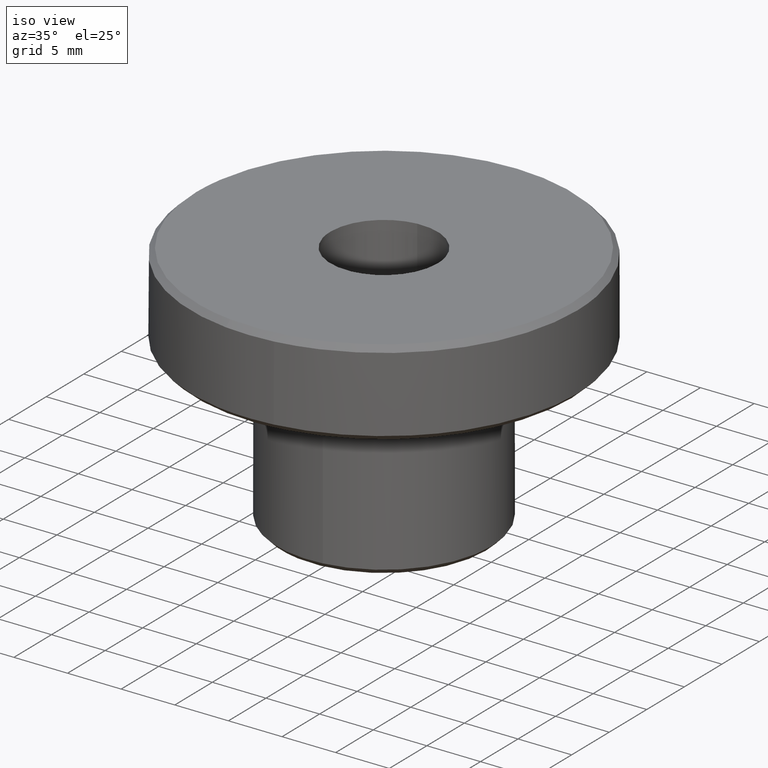
[diagram: clean part render]
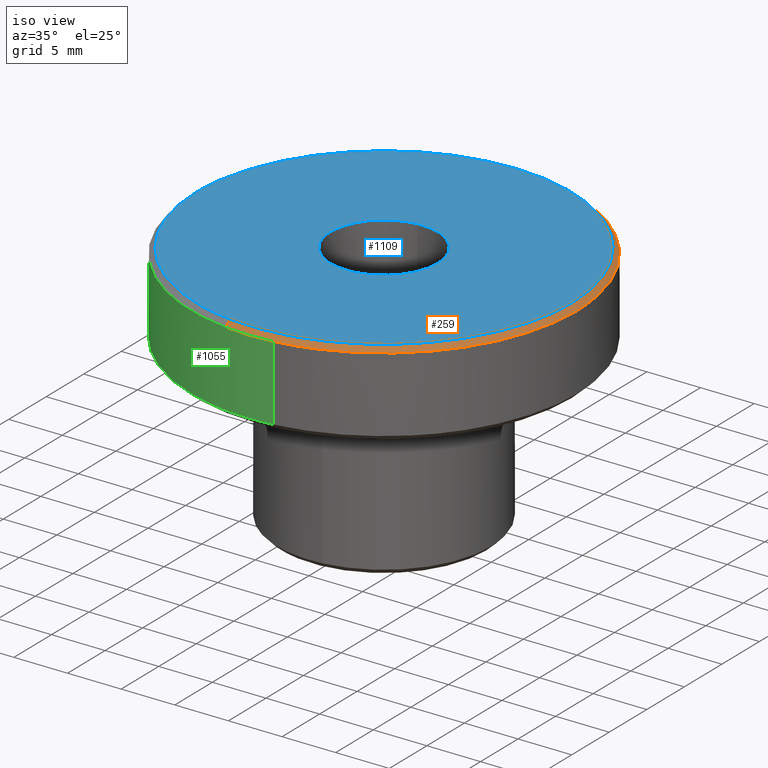
[diagram: same view with three faces highlighted in distinct colors, each labeled with its STEP entity id]
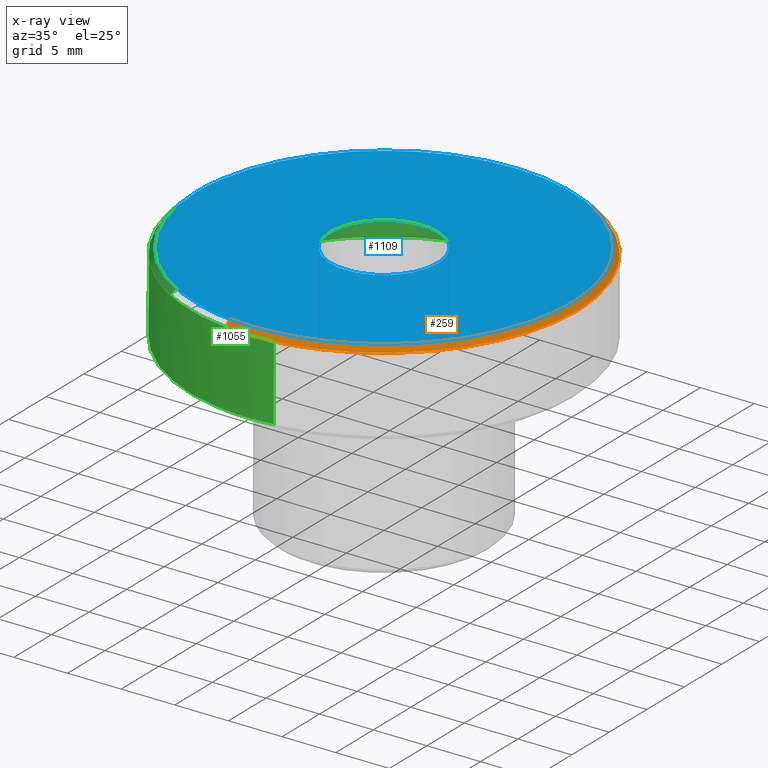
[diagram: x-ray of the same camera — body ghosted, the three highlighted faces saturated]
A machine part, iso view with three faces highlighted in distinct colors.
The next image is the same camera in x-ray (body ghosted, the three faces saturated) — at least one of them is partly hidden behind the body in this view.
Their STEP definitions:

[orange] entity #259 — the highlighted face is a freeform B-spline surface patch.
#62=CARTESIAN_POINT('',(-2.234304037480998,-17.860791848859769,22.499999999994461));
#63=VERTEX_POINT('',#62);
#79=CARTESIAN_POINT('',(-2.172240036428871,-17.364658741946990,22.999999999996010));
#80=VERTEX_POINT('',#79);
#81=CARTESIAN_POINT('',(-2.172240036428871,-17.364658741946990,22.999999999996010));
#82=CARTESIAN_POINT('',(-2.234304037480998,-17.860791848859769,22.499999999994461));
#83=QUASI_UNIFORM_CURVE('',1,(#81,#82),.UNSPECIFIED.,.F.,.U.);
#84=EDGE_CURVE('',#80,#63,#83,.T.);
#101=CARTESIAN_POINT('',(0.152714371254918,17.499333653627261,22.999999999995470));
#102=VERTEX_POINT('',#101);
#118=CARTESIAN_POINT('',(0.157077639026141,17.999314615162131,22.499999999992468));
#119=VERTEX_POINT('',#118);
#120=CARTESIAN_POINT('',(0.152714371254918,17.499333653627261,22.999999999995470));
#121=CARTESIAN_POINT('',(0.157077639026141,17.999314615162131,22.499999999992468));
#122=QUASI_UNIFORM_CURVE('',1,(#120,#121),.UNSPECIFIED.,.F.,.U.);
#123=EDGE_CURVE('',#102,#119,#122,.T.);
#158=CARTESIAN_POINT('',(0.152605289527814,17.486834129584739,23.012499999999999));
#159=CARTESIAN_POINT('',(17.639439419112552,17.334228840056934,23.012500000000006));
#160=CARTESIAN_POINT('',(17.486834129584739,-0.152605289527814,23.012499999999999));
#161=CARTESIAN_POINT('',(17.334228840056934,-17.639439419112552,23.012500000000006));
#162=CARTESIAN_POINT('',(-0.152605289527814,-17.486834129584739,23.012499999999999));
#163=CARTESIAN_POINT('',(-1.165544654781064,-17.477994341664115,23.012500000000006));
#164=CARTESIAN_POINT('',(-2.170688436371020,-17.352255414274158,23.012499999999999));
#165=CARTESIAN_POINT('',(0.157189447706803,18.012126627294339,22.487187500000001));
#166=CARTESIAN_POINT('',(18.169316075001138,17.854937179587541,22.487187500000005));
#167=CARTESIAN_POINT('',(18.012126627294339,-0.157189447706803,22.487187500000001));
#168=CARTESIAN_POINT('',(17.854937179587541,-18.169316075001138,22.487187500000005));
#169=CARTESIAN_POINT('',(-0.157189447706803,-18.012126627294339,22.487187500000001));
#170=CARTESIAN_POINT('',(-1.200556816408777,-18.003021298210488,22.487187500000001));
#171=CARTESIAN_POINT('',(-2.235894427463576,-17.873505259724336,22.487187500000001));
#179=(BOUNDED_SURFACE()B_SPLINE_SURFACE(2,1,((#158,#165),(#159,#166),(#160,#167),(#161,#168),(#162,#169),(#163,#170),(#164,#171)),.UNSPECIFIED.,.F.,.F.,.U.)B_SPLINE_SURFACE_WITH_KNOTS((3,2,2,3),(2,2),(0.0,29.844604935934470,59.689209871868933,62.076778266743688),(0.0,1.0),.UNSPECIFIED.)GEOMETRIC_REPRESENTATION_ITEM()RATIONAL_B_SPLINE_SURFACE(((1.0,1.0),(0.707106781186548,0.707106781186548),(1.0,1.0),(0.707106781186548,0.707106781186548),(1.0,1.0),(0.976568542494924,0.976568542494924),(0.956886118190660,0.956886118190660)))REPRESENTATION_ITEM('')SURFACE());
#180=CARTESIAN_POINT('',(2.234296449453625,-17.860792798078709,22.500000000000060));
#181=VERTEX_POINT('',#180);
#182=CARTESIAN_POINT('',(2.234296449453625,-17.860792798078712,22.500000000000060));
#183=CARTESIAN_POINT('',(1.121484857198190,-18.000000000000004,22.500000000000004));
#184=CARTESIAN_POINT('',(0.0,-18.0,22.500000000000000));
#185=CARTESIAN_POINT('',(-1.121488695646812,-18.000000000000004,22.500000000000000));
#186=CARTESIAN_POINT('',(-2.234304037480999,-17.860791848859776,22.499999999994454));
#194=(BOUNDED_CURVE()B_SPLINE_CURVE(2,(#182,#183,#184,#185,#186),.UNSPECIFIED.,.F.,.U.)B_SPLINE_CURVE_WITH_KNOTS((3,2,3),(0.728526142676878,0.750000000000000,0.771473928971521),.UNSPECIFIED.)CURVE()GEOMETRIC_REPRESENTATION_ITEM()RATIONAL_B_SPLINE_CURVE((0.954005569315019,0.974841811233160,1.0,0.974841727291839,0.954005430273128))REPRESENTATION_ITEM(''));
#195=EDGE_CURVE('',#181,#63,#194,.T.);
#196=ORIENTED_EDGE('',*,*,#195,.F.);
#197=CARTESIAN_POINT('',(18.0,0.0,22.500000000000000));
#198=VERTEX_POINT('',#197);
#199=CARTESIAN_POINT('',(18.0,0.0,22.500000000000000));
#200=CARTESIAN_POINT('',(18.0,-15.888581605421901,22.499999999999996));
#201=CARTESIAN_POINT('',(2.234296449453625,-17.860792798078712,22.500000000000060));
#209=(BOUNDED_CURVE()B_SPLINE_CURVE(2,(#199,#200,#201),.UNSPECIFIED.,.F.,.U.)B_SPLINE_CURVE_WITH_KNOTS((3,3),(0.500000000000000,0.728526142676878),.UNSPECIFIED.)CURVE()GEOMETRIC_REPRESENTATION_ITEM()RATIONAL_B_SPLINE_CURVE((1.0,0.732264969953387,0.954005569315019))REPRESENTATION_ITEM(''));
#210=EDGE_CURVE('',#198,#181,#209,.T.);
#211=ORIENTED_EDGE('',*,*,#210,.F.);
#212=CARTESIAN_POINT('',(0.157077639026141,17.999314615162135,22.499999999992465));
#213=CARTESIAN_POINT('',(18.0,17.843601790599877,22.500000000000000));
#214=CARTESIAN_POINT('',(18.0,0.0,22.500000000000000));
#222=(BOUNDED_CURVE()B_SPLINE_CURVE(2,(#212,#213,#214),.UNSPECIFIED.,.F.,.U.)B_SPLINE_CURVE_WITH_KNOTS((3,3),(0.251539894336070,0.500000000000000),.UNSPECIFIED.)CURVE()GEOMETRIC_REPRESENTATION_ITEM()RATIONAL_B_SPLINE_CURVE((0.996414028097899,0.708910879621444,1.0))REPRESENTATION_ITEM(''));
#223=EDGE_CURVE('',#119,#198,#222,.T.);
#224=ORIENTED_EDGE('',*,*,#223,.F.);
#225=ORIENTED_EDGE('',*,*,#123,.F.);
#226=CARTESIAN_POINT('',(17.500000000000000,0.0,23.0));
#227=VERTEX_POINT('',#226);
#228=CARTESIAN_POINT('',(17.500000000000000,0.0,23.0));
#229=CARTESIAN_POINT('',(17.500000000000004,17.347946185346032,23.000000000000007));
#230=CARTESIAN_POINT('',(0.152714371254918,17.499333653627264,22.999999999995463));
#238=(BOUNDED_CURVE()B_SPLINE_CURVE(2,(#228,#229,#230),.UNSPECIFIED.,.F.,.U.)B_SPLINE_CURVE_WITH_KNOTS((3,3),(0.0,0.248460105664342),.UNSPECIFIED.)CURVE()GEOMETRIC_REPRESENTATION_ITEM()RATIONAL_B_SPLINE_CURVE((1.0,0.708910879620962,0.996414028098853))REPRESENTATION_ITEM(''));
#239=EDGE_CURVE('',#227,#102,#238,.T.);
#240=ORIENTED_EDGE('',*,*,#239,.F.);
#241=CARTESIAN_POINT('',(-2.172240036428871,-17.364658741946993,22.999999999996014));
#242=CARTESIAN_POINT('',(-1.090336231867875,-17.499999999999996,22.999999999999993));
#243=CARTESIAN_POINT('',(0.0,-17.500000000000000,23.0));
#244=CARTESIAN_POINT('',(17.499999999999996,-17.499999999999996,22.999999999999993));
#245=CARTESIAN_POINT('',(17.500000000000000,0.0,23.0));
#253=(BOUNDED_CURVE()B_SPLINE_CURVE(2,(#241,#242,#243,#244,#245),.UNSPECIFIED.,.F.,.U.)B_SPLINE_CURVE_WITH_KNOTS((3,2,3),(0.728526071028690,0.750000000000000,1.0),.UNSPECIFIED.)CURVE()GEOMETRIC_REPRESENTATION_ITEM()RATIONAL_B_SPLINE_CURVE((0.954005430273537,0.974841727292086,1.0,0.707106781186548,1.0))REPRESENTATION_ITEM(''));
#254=EDGE_CURVE('',#80,#227,#253,.T.);
#255=ORIENTED_EDGE('',*,*,#254,.F.);
#256=ORIENTED_EDGE('',*,*,#84,.T.);
#257=EDGE_LOOP('',(#196,#211,#224,#225,#240,#255,#256));
#258=FACE_OUTER_BOUND('',#257,.T.);
#259=ADVANCED_FACE('',(#258),#179,.T.);

[blue] entity #1109 — the highlighted face is a freeform B-spline surface patch.
#79=CARTESIAN_POINT('',(-2.172240036428871,-17.364658741946990,22.999999999996010));
#80=VERTEX_POINT('',#79);
#86=CARTESIAN_POINT('',(-17.500000000000000,0.0,23.0));
#87=VERTEX_POINT('',#86);
#88=CARTESIAN_POINT('',(-17.500000000000000,0.0,23.0));
#89=CARTESIAN_POINT('',(-17.500000000000000,-15.447225502572767,23.0));
#90=CARTESIAN_POINT('',(-2.172240036428871,-17.364658741946986,22.999999999996010));
#98=(BOUNDED_CURVE()B_SPLINE_CURVE(2,(#88,#89,#90),.UNSPECIFIED.,.F.,.U.)B_SPLINE_CURVE_WITH_KNOTS((3,3),(0.500000000000000,0.728526071028690),.UNSPECIFIED.)CURVE()GEOMETRIC_REPRESENTATION_ITEM()RATIONAL_B_SPLINE_CURVE((1.0,0.732265053894462,0.954005430273536))REPRESENTATION_ITEM(''));
#99=EDGE_CURVE('',#87,#80,#98,.T.);
#101=CARTESIAN_POINT('',(0.152714371254918,17.499333653627261,22.999999999995470));
#102=VERTEX_POINT('',#101);
#103=CARTESIAN_POINT('',(0.152714371254919,17.499333653627257,22.999999999995470));
#104=CARTESIAN_POINT('',(0.076358639395615,17.499999999999996,23.000000000000004));
#105=CARTESIAN_POINT('',(0.0,17.500000000000000,23.0));
#106=CARTESIAN_POINT('',(-17.499999999999996,17.499999999999996,22.999999999999993));
#107=CARTESIAN_POINT('',(-17.500000000000000,0.0,23.0));
#115=(BOUNDED_CURVE()B_SPLINE_CURVE(2,(#103,#104,#105,#106,#107),.UNSPECIFIED.,.F.,.U.)B_SPLINE_CURVE_WITH_KNOTS((3,2,3),(0.248460105664342,0.250000000000000,0.500000000000000),.UNSPECIFIED.)CURVE()GEOMETRIC_REPRESENTATION_ITEM()RATIONAL_B_SPLINE_CURVE((0.996414028098853,0.998195901565586,1.0,0.707106781186548,1.0))REPRESENTATION_ITEM(''));
#116=EDGE_CURVE('',#102,#87,#115,.T.);
#226=CARTESIAN_POINT('',(17.500000000000000,0.0,23.0));
#227=VERTEX_POINT('',#226);
#228=CARTESIAN_POINT('',(17.500000000000000,0.0,23.0));
#229=CARTESIAN_POINT('',(17.500000000000004,17.347946185346032,23.000000000000007));
#230=CARTESIAN_POINT('',(0.152714371254918,17.499333653627264,22.999999999995463));
#238=(BOUNDED_CURVE()B_SPLINE_CURVE(2,(#228,#229,#230),.UNSPECIFIED.,.F.,.U.)B_SPLINE_CURVE_WITH_KNOTS((3,3),(0.0,0.248460105664342),.UNSPECIFIED.)CURVE()GEOMETRIC_REPRESENTATION_ITEM()RATIONAL_B_SPLINE_CURVE((1.0,0.708910879620962,0.996414028098853))REPRESENTATION_ITEM(''));
#239=EDGE_CURVE('',#227,#102,#238,.T.);
#241=CARTESIAN_POINT('',(-2.172240036428871,-17.364658741946993,22.999999999996014));
#242=CARTESIAN_POINT('',(-1.090336231867875,-17.499999999999996,22.999999999999993));
#243=CARTESIAN_POINT('',(0.0,-17.500000000000000,23.0));
#244=CARTESIAN_POINT('',(17.499999999999996,-17.499999999999996,22.999999999999993));
#245=CARTESIAN_POINT('',(17.500000000000000,0.0,23.0));
#253=(BOUNDED_CURVE()B_SPLINE_CURVE(2,(#241,#242,#243,#244,#245),.UNSPECIFIED.,.F.,.U.)B_SPLINE_CURVE_WITH_KNOTS((3,2,3),(0.728526071028690,0.750000000000000,1.0),.UNSPECIFIED.)CURVE()GEOMETRIC_REPRESENTATION_ITEM()RATIONAL_B_SPLINE_CURVE((0.954005430273537,0.974841727292086,1.0,0.707106781186548,1.0))REPRESENTATION_ITEM(''));
#254=EDGE_CURVE('',#80,#227,#253,.T.);
#712=CARTESIAN_POINT('',(0.392295478669359,-4.984586668663267,23.0));
#713=VERTEX_POINT('',#712);
#719=CARTESIAN_POINT('',(5.0,0.0,23.0));
#720=VERTEX_POINT('',#719);
#721=CARTESIAN_POINT('',(5.0,0.0,23.0));
#722=CARTESIAN_POINT('',(4.999999999999999,-4.621952458234981,22.999999999999996));
#723=CARTESIAN_POINT('',(0.392295478669359,-4.984586668663267,23.000000000000007));
#731=(BOUNDED_CURVE()B_SPLINE_CURVE(2,(#721,#722,#723),.UNSPECIFIED.,.F.,.U.)B_SPLINE_CURVE_WITH_KNOTS((3,3),(0.0,0.236331300630694),.UNSPECIFIED.)CURVE()GEOMETRIC_REPRESENTATION_ITEM()RATIONAL_B_SPLINE_CURVE((1.0,0.723120658607625,0.969723356167490))REPRESENTATION_ITEM(''));
#732=EDGE_CURVE('',#720,#713,#731,.T.);
#734=CARTESIAN_POINT('',(-0.392295478669359,4.984586668663267,23.0));
#735=VERTEX_POINT('',#734);
#736=CARTESIAN_POINT('',(-0.392295478669359,4.984586668663267,23.0));
#737=CARTESIAN_POINT('',(-0.196450535068621,5.0,23.0));
#738=CARTESIAN_POINT('',(0.0,5.0,23.0));
#739=CARTESIAN_POINT('',(5.000000000000001,5.000000000000001,22.999999999999993));
#740=CARTESIAN_POINT('',(5.0,0.0,23.0));
#748=(BOUNDED_CURVE()B_SPLINE_CURVE(2,(#736,#737,#738,#739,#740),.UNSPECIFIED.,.F.,.U.)B_SPLINE_CURVE_WITH_KNOTS((3,2,3),(0.736331300630694,0.750000000000000,1.0),.UNSPECIFIED.)CURVE()GEOMETRIC_REPRESENTATION_ITEM()RATIONAL_B_SPLINE_CURVE((0.969723356167490,0.983986122578923,1.0,0.707106781186548,1.0))REPRESENTATION_ITEM(''));
#749=EDGE_CURVE('',#735,#720,#748,.T.);
#825=CARTESIAN_POINT('',(-5.0,0.0,23.0));
#826=VERTEX_POINT('',#825);
#827=CARTESIAN_POINT('',(-5.0,0.0,23.0));
#828=CARTESIAN_POINT('',(-5.000000000000001,4.621952458234984,23.0));
#829=CARTESIAN_POINT('',(-0.392295478669359,4.984586668663268,23.000000000000007));
#837=(BOUNDED_CURVE()B_SPLINE_CURVE(2,(#827,#828,#829),.UNSPECIFIED.,.F.,.U.)B_SPLINE_CURVE_WITH_KNOTS((3,3),(0.500000000000000,0.736331300630694),.UNSPECIFIED.)CURVE()GEOMETRIC_REPRESENTATION_ITEM()RATIONAL_B_SPLINE_CURVE((1.0,0.723120658607625,0.969723356167490))REPRESENTATION_ITEM(''));
#838=EDGE_CURVE('',#826,#735,#837,.T.);
#840=CARTESIAN_POINT('',(0.392295478669359,-4.984586668663267,23.0));
#841=CARTESIAN_POINT('',(0.196450535068621,-5.0,23.0));
#842=CARTESIAN_POINT('',(0.0,-5.0,23.0));
#843=CARTESIAN_POINT('',(-5.000000000000001,-5.000000000000001,22.999999999999993));
#844=CARTESIAN_POINT('',(-5.0,0.0,23.0));
#852=(BOUNDED_CURVE()B_SPLINE_CURVE(2,(#840,#841,#842,#843,#844),.UNSPECIFIED.,.F.,.U.)B_SPLINE_CURVE_WITH_KNOTS((3,2,3),(0.236331300630694,0.250000000000000,0.500000000000000),.UNSPECIFIED.)CURVE()GEOMETRIC_REPRESENTATION_ITEM()RATIONAL_B_SPLINE_CURVE((0.969723356167490,0.983986122578923,1.0,0.707106781186548,1.0))REPRESENTATION_ITEM(''));
#853=EDGE_CURVE('',#713,#826,#852,.T.);
#1092=CARTESIAN_POINT('',(-19.248249932163208,-19.247015144822001,23.0));
#1093=CARTESIAN_POINT('',(19.248250870936360,-19.247015144822001,23.0));
#1094=CARTESIAN_POINT('',(-19.248249932163208,19.247494544979929,23.0));
#1095=CARTESIAN_POINT('',(19.248250870936360,19.247494544979929,23.0));
#1096=B_SPLINE_SURFACE_WITH_KNOTS('',1,1,((#1092,#1094),(#1093,#1095)),.UNSPECIFIED.,.F.,.F.,.U.,(2,2),(2,2),(0.0,38.496500803099579),(0.0,38.494509689801930),.UNSPECIFIED.);
#1097=ORIENTED_EDGE('',*,*,#239,.T.);
#1098=ORIENTED_EDGE('',*,*,#116,.T.);
#1099=ORIENTED_EDGE('',*,*,#99,.T.);
#1100=ORIENTED_EDGE('',*,*,#254,.T.);
#1101=EDGE_LOOP('',(#1097,#1098,#1099,#1100));
#1102=FACE_OUTER_BOUND('',#1101,.T.);
#1103=ORIENTED_EDGE('',*,*,#838,.T.);
#1104=ORIENTED_EDGE('',*,*,#749,.T.);
#1105=ORIENTED_EDGE('',*,*,#732,.T.);
#1106=ORIENTED_EDGE('',*,*,#853,.T.);
#1107=EDGE_LOOP('',(#1103,#1104,#1105,#1106));
#1108=FACE_BOUND('',#1107,.T.);
#1109=ADVANCED_FACE('',(#1102,#1108),#1096,.T.);

[green] entity #1055 — the highlighted face is a freeform B-spline surface patch.
#62=CARTESIAN_POINT('',(-2.234304037480998,-17.860791848859769,22.499999999994461));
#63=VERTEX_POINT('',#62);
#64=CARTESIAN_POINT('',(-18.0,0.0,22.500000000000000));
#65=VERTEX_POINT('',#64);
#66=CARTESIAN_POINT('',(-2.234304037480997,-17.860791848859773,22.499999999994454));
#67=CARTESIAN_POINT('',(-18.0,-15.888574802626337,22.500000000000007));
#68=CARTESIAN_POINT('',(-18.0,0.0,22.500000000000000));
#76=(BOUNDED_CURVE()B_SPLINE_CURVE(2,(#66,#67,#68),.UNSPECIFIED.,.F.,.U.)B_SPLINE_CURVE_WITH_KNOTS((3,3),(0.771473928971520,1.0),.UNSPECIFIED.)CURVE()GEOMETRIC_REPRESENTATION_ITEM()RATIONAL_B_SPLINE_CURVE((0.954005430273129,0.732265053894708,1.0))REPRESENTATION_ITEM(''));
#77=EDGE_CURVE('',#63,#65,#76,.T.);
#125=CARTESIAN_POINT('',(-0.157065289093424,17.999314722922350,22.500000000000039));
#126=VERTEX_POINT('',#125);
#142=CARTESIAN_POINT('',(-18.0,0.0,22.500000000000000));
#143=CARTESIAN_POINT('',(-18.000000000000004,17.843614034217900,22.499999999999993));
#144=CARTESIAN_POINT('',(-0.157065289093424,17.999314722922346,22.500000000000036));
#152=(BOUNDED_CURVE()B_SPLINE_CURVE(2,(#142,#143,#144),.UNSPECIFIED.,.F.,.U.)B_SPLINE_CURVE_WITH_KNOTS((3,3),(0.0,0.248460226521948),.UNSPECIFIED.)CURVE()GEOMETRIC_REPRESENTATION_ITEM()RATIONAL_B_SPLINE_CURVE((1.0,0.708910738027468,0.996414307797352))REPRESENTATION_ITEM(''));
#153=EDGE_CURVE('',#65,#126,#152,.T.);
#180=CARTESIAN_POINT('',(2.234296449453625,-17.860792798078709,22.500000000000060));
#181=VERTEX_POINT('',#180);
#182=CARTESIAN_POINT('',(2.234296449453625,-17.860792798078712,22.500000000000060));
#183=CARTESIAN_POINT('',(1.121484857198190,-18.000000000000004,22.500000000000004));
#184=CARTESIAN_POINT('',(0.0,-18.0,22.500000000000000));
#185=CARTESIAN_POINT('',(-1.121488695646812,-18.000000000000004,22.500000000000000));
#186=CARTESIAN_POINT('',(-2.234304037480999,-17.860791848859776,22.499999999994454));
#194=(BOUNDED_CURVE()B_SPLINE_CURVE(2,(#182,#183,#184,#185,#186),.UNSPECIFIED.,.F.,.U.)B_SPLINE_CURVE_WITH_KNOTS((3,2,3),(0.728526142676878,0.750000000000000,0.771473928971521),.UNSPECIFIED.)CURVE()GEOMETRIC_REPRESENTATION_ITEM()RATIONAL_B_SPLINE_CURVE((0.954005569315019,0.974841811233160,1.0,0.974841727291839,0.954005430273128))REPRESENTATION_ITEM(''));
#195=EDGE_CURVE('',#181,#63,#194,.T.);
#337=CARTESIAN_POINT('',(0.157077638971336,-17.999314615155171,15.500000000000069));
#338=VERTEX_POINT('',#337);
#344=CARTESIAN_POINT('',(-18.0,0.0,15.500000000000000));
#345=VERTEX_POINT('',#344);
#346=CARTESIAN_POINT('',(-18.0,0.0,15.500000000000000));
#347=CARTESIAN_POINT('',(-18.000000000000007,-18.000000000000007,15.500000000000005));
#348=CARTESIAN_POINT('',(0.0,-18.0,15.500000000000000));
#349=CARTESIAN_POINT('',(0.078540314773233,-18.000000000000004,15.499999999999998));
#350=CARTESIAN_POINT('',(0.157077638971336,-17.999314615155175,15.500000000000075));
#358=(BOUNDED_CURVE()B_SPLINE_CURVE(2,(#346,#347,#348,#349,#350),.UNSPECIFIED.,.F.,.U.)B_SPLINE_CURVE_WITH_KNOTS((3,2,3),(0.0,0.250000000000000,0.251539894334999),.UNSPECIFIED.)CURVE()GEOMETRIC_REPRESENTATION_ITEM()RATIONAL_B_SPLINE_CURVE((1.0,0.707106781186547,1.0,0.998195901566358,0.996414028100378))REPRESENTATION_ITEM(''));
#359=EDGE_CURVE('',#345,#338,#358,.T.);
#361=CARTESIAN_POINT('',(-0.157064489507511,17.999314729899101,15.500000000000000));
#362=VERTEX_POINT('',#361);
#363=CARTESIAN_POINT('',(-0.157064489507511,17.999314729899098,15.500000000000004));
#364=CARTESIAN_POINT('',(-18.0,17.843614826917293,15.499999999999995));
#365=CARTESIAN_POINT('',(-18.0,0.0,15.500000000000000));
#373=(BOUNDED_CURVE()B_SPLINE_CURVE(2,(#363,#364,#365),.UNSPECIFIED.,.F.,.U.)B_SPLINE_CURVE_WITH_KNOTS((3,3),(0.751539765653236,1.0),.UNSPECIFIED.)CURVE()GEOMETRIC_REPRESENTATION_ITEM()RATIONAL_B_SPLINE_CURVE((0.996414325906187,0.708910728860126,1.0))REPRESENTATION_ITEM(''));
#374=EDGE_CURVE('',#362,#345,#373,.T.);
#444=CARTESIAN_POINT('',(2.234292979299845,-17.860793232175531,15.500000000000000));
#445=VERTEX_POINT('',#444);
#459=CARTESIAN_POINT('',(0.157077638971336,-17.999314615155168,15.500000000000068));
#460=CARTESIAN_POINT('',(1.199697270601845,-17.990215811473725,15.499999999999998));
#461=CARTESIAN_POINT('',(2.234292979299845,-17.860793232175535,15.500000000000005));
#469=(BOUNDED_CURVE()B_SPLINE_CURVE(2,(#459,#460,#461),.UNSPECIFIED.,.F.,.U.)B_SPLINE_CURVE_WITH_KNOTS((3,3),(0.251539894334999,0.271473824557087),.UNSPECIFIED.)CURVE()GEOMETRIC_REPRESENTATION_ITEM()RATIONAL_B_SPLINE_CURVE((0.996414028100378,0.973347678333298,0.954005632901279))REPRESENTATION_ITEM(''));
#470=EDGE_CURVE('',#338,#445,#469,.T.);
#1005=CARTESIAN_POINT('',(2.234292979299845,-17.860793232175531,15.500000000000000));
#1006=CARTESIAN_POINT('',(2.234296449453625,-17.860792798078709,22.500000000000060));
#1007=QUASI_UNIFORM_CURVE('',1,(#1005,#1006),.UNSPECIFIED.,.F.,.U.);
#1008=EDGE_CURVE('',#445,#181,#1007,.T.);
#1013=CARTESIAN_POINT('',(-0.157064489507511,17.999314729899101,15.500000000000000));
#1014=CARTESIAN_POINT('',(-0.157065289093424,17.999314722922350,22.500000000000039));
#1015=QUASI_UNIFORM_CURVE('',1,(#1013,#1014),.UNSPECIFIED.,.F.,.U.);
#1016=EDGE_CURVE('',#362,#126,#1015,.T.);
#1023=CARTESIAN_POINT('',(-0.157077638970730,17.999314615155079,15.324999999999999));
#1024=CARTESIAN_POINT('',(-18.156392254125802,17.842236976184342,15.324999999999998));
#1025=CARTESIAN_POINT('',(-17.999314615155079,-0.157077638970730,15.324999999999999));
#1026=CARTESIAN_POINT('',(-17.842236976184342,-18.156392254125802,15.324999999999998));
#1027=CARTESIAN_POINT('',(0.157077638970730,-17.999314615155079,15.324999999999999));
#1028=CARTESIAN_POINT('',(1.199702861247124,-17.990215762684961,15.325000000000003));
#1029=CARTESIAN_POINT('',(2.234304037436927,-17.860791848859694,15.324999999999998));
#1030=CARTESIAN_POINT('',(-0.157077638970730,17.999314615155079,22.679375000000000));
#1031=CARTESIAN_POINT('',(-18.156392254125802,17.842236976184342,22.679375000000000));
#1032=CARTESIAN_POINT('',(-17.999314615155079,-0.157077638970730,22.679375000000000));
#1033=CARTESIAN_POINT('',(-17.842236976184342,-18.156392254125802,22.679375000000000));
#1034=CARTESIAN_POINT('',(0.157077638970730,-17.999314615155079,22.679375000000000));
#1035=CARTESIAN_POINT('',(1.199702861247124,-17.990215762684961,22.679375000000004));
#1036=CARTESIAN_POINT('',(2.234304037436927,-17.860791848859694,22.679375000000004));
#1044=(BOUNDED_SURFACE()B_SPLINE_SURFACE(2,1,((#1023,#1030),(#1024,#1031),(#1025,#1032),(#1026,#1033),(#1027,#1034),(#1028,#1035),(#1029,#1036)),.UNSPECIFIED.,.F.,.F.,.U.)B_SPLINE_SURFACE_WITH_KNOTS((3,2,2,3),(2,2),(0.0,29.823376490862831,59.646752981725669,62.032623100994698),(0.0,7.354375000000009),.UNSPECIFIED.)GEOMETRIC_REPRESENTATION_ITEM()RATIONAL_B_SPLINE_SURFACE(((1.0,1.0),(0.707106781186548,0.707106781186548),(1.0,1.0),(0.707106781186548,0.707106781186548),(1.0,1.0),(0.976568542494924,0.976568542494924),(0.956886118190660,0.956886118190660)))REPRESENTATION_ITEM('')SURFACE());
#1045=ORIENTED_EDGE('',*,*,#195,.T.);
#1046=ORIENTED_EDGE('',*,*,#77,.T.);
#1047=ORIENTED_EDGE('',*,*,#153,.T.);
#1048=ORIENTED_EDGE('',*,*,#1016,.F.);
#1049=ORIENTED_EDGE('',*,*,#374,.T.);
#1050=ORIENTED_EDGE('',*,*,#359,.T.);
#1051=ORIENTED_EDGE('',*,*,#470,.T.);
#1052=ORIENTED_EDGE('',*,*,#1008,.T.);
#1053=EDGE_LOOP('',(#1045,#1046,#1047,#1048,#1049,#1050,#1051,#1052));
#1054=FACE_OUTER_BOUND('',#1053,.T.);
#1055=ADVANCED_FACE('',(#1054),#1044,.T.);